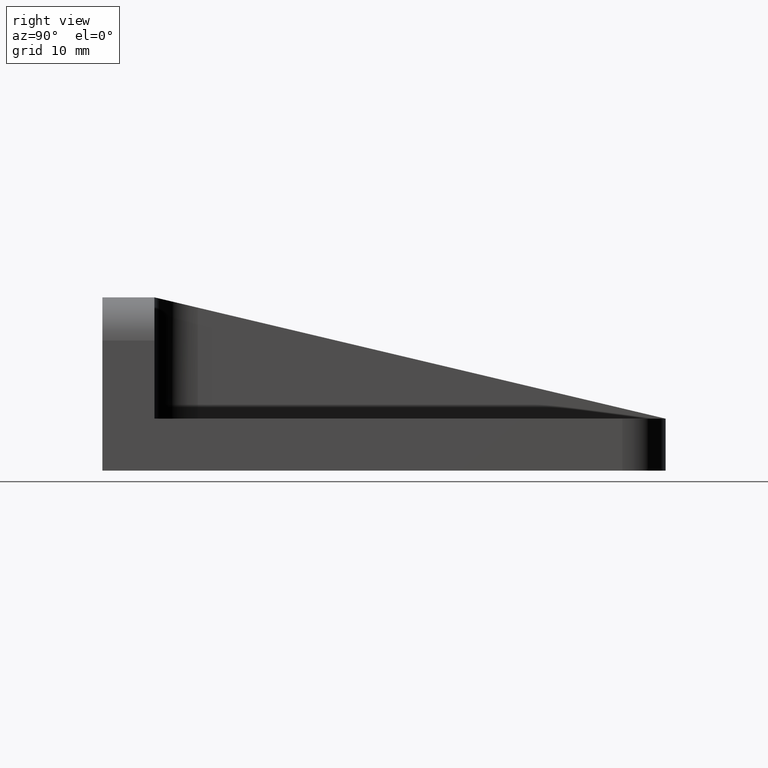
[diagram: clean part render]
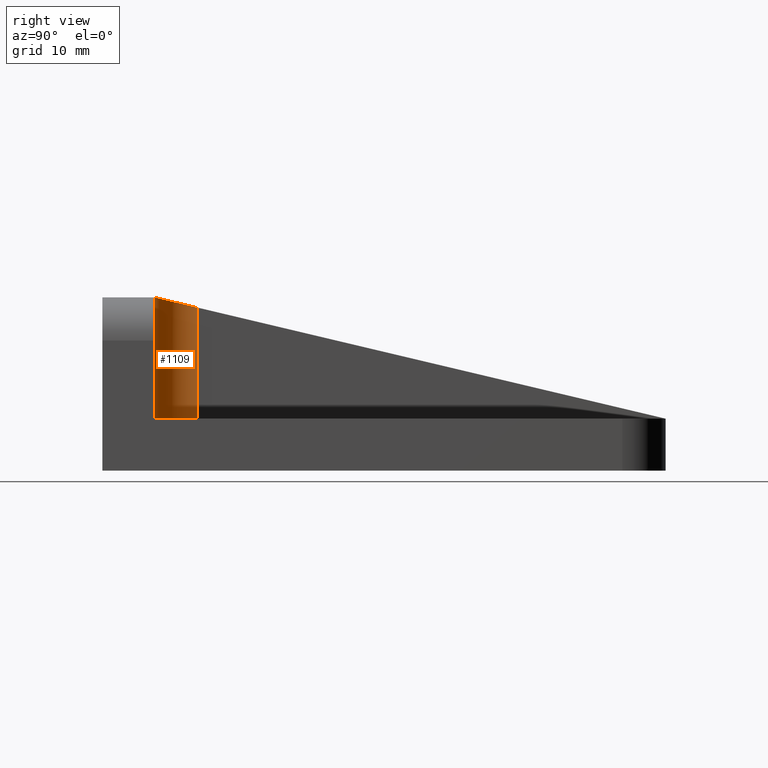
[diagram: same view with one face highlighted and labeled with its STEP entity id]
A machine part, right view. The second image highlights one B-rep face of the part: STEP entity #1109.
In plain terms, the highlighted cylindrical surface (partial cylindrical patch) has radius 5 mm, axis along (0, 0, -1).
Its self-contained STEP definition (entity closure, byte-faithful):
#76 = ORIENTED_EDGE ( 'NONE', *, *, #595, .F. ) ;
#82 = VERTEX_POINT ( 'NONE', #650 ) ;
#102 = VERTEX_POINT ( 'NONE', #922 ) ;
#190 = DIRECTION ( 'NONE',  ( 0.0000000000000000000, 0.0000000000000000000, 1.000000000000000000 ) ) ;
#204 = CYLINDRICAL_SURFACE ( 'NONE', #797, 5.000000000000000000 ) ;
#218 = ORIENTED_EDGE ( 'NONE', *, *, #478, .F. ) ;
#292 = ORIENTED_EDGE ( 'NONE', *, *, #837, .F. ) ;
#316 = CARTESIAN_POINT ( 'NONE',  ( 3.000000000000011990, 8.071067811865466624, 19.50856018023531746 ) ) ;
#323 = ORIENTED_EDGE ( 'NONE', *, *, #606, .F. ) ;
#326 = DIRECTION ( 'NONE',  ( 1.000000000000000000, 0.0000000000000000000, 0.0000000000000000000 ) ) ;
#374 = CIRCLE ( 'NONE', #435, 5.000000000000000888 ) ;
#419 = CARTESIAN_POINT ( 'NONE',  ( 3.000000000000007105, 10.99999999999998934, 18.81355932203389969 ) ) ;
#435 = AXIS2_PLACEMENT_3D ( 'NONE', #702, #1107, #326 ) ;
#478 = EDGE_CURVE ( 'NONE', #102, #82, #374, .T. ) ;
#492 = LINE ( 'NONE', #570, #1200 ) ;
#495 = DIRECTION ( 'NONE',  ( -1.000000000000000000, 0.0000000000000000000, 0.0000000000000000000 ) ) ;
#545 = CARTESIAN_POINT ( 'NONE',  ( 3.000000000000007105, 10.99999999999998934, 18.81355932203389969 ) ) ;
#563 = DIRECTION ( 'NONE',  ( -0.0000000000000000000, -0.0000000000000000000, -1.000000000000000000 ) ) ;
#570 = CARTESIAN_POINT ( 'NONE',  ( 3.000000000000007105, 10.99999999999999822, 6.000000000000005329 ) ) ;
#590 = CARTESIAN_POINT ( 'NONE',  ( 8.000000000000007105, 5.999999999999998224, 20.00000000000000355 ) ) ;
#593 = CARTESIAN_POINT ( 'NONE',  ( 8.000000000000007105, 10.99999999999999822, -62.96824596572466248 ) ) ;
#595 = EDGE_CURVE ( 'NONE', #82, #1053, #976, .T. ) ;
#606 = EDGE_CURVE ( 'NONE', #792, #102, #492, .T. ) ;
#650 = CARTESIAN_POINT ( 'NONE',  ( 8.000000000000007105, 5.999999999999998224, 6.000000000000005329 ) ) ;
#695 = EDGE_LOOP ( 'NONE', ( #218, #323, #292, #76 ) ) ;
#697 = FACE_OUTER_BOUND ( 'NONE', #695, .T. ) ;
#702 = CARTESIAN_POINT ( 'NONE',  ( 8.000000000000007105, 10.99999999999999822, 6.000000000000005329 ) ) ;
#792 = VERTEX_POINT ( 'NONE', #545 ) ;
#797 = AXIS2_PLACEMENT_3D ( 'NONE', #593, #1171, #495 ) ;
#807 = CARTESIAN_POINT ( 'NONE',  ( 8.000000000000007105, 5.999999999999997335, 20.00000000000000000 ) ) ;
#837 = EDGE_CURVE ( 'NONE', #1053, #792, #878, .T. ) ;
#847 = VECTOR ( 'NONE', #190, 1000.000000000000000 ) ;
#878 =( BOUNDED_CURVE ( )  B_SPLINE_CURVE ( 3, ( #807, #1187, #316, #419 ),
 .UNSPECIFIED., .F., .T. ) 
 B_SPLINE_CURVE_WITH_KNOTS ( ( 4, 4 ),
 ( 3.141592653589793116, 4.712388980384687898 ),
 .UNSPECIFIED. ) 
 CURVE ( )  GEOMETRIC_REPRESENTATION_ITEM ( )  RATIONAL_B_SPLINE_CURVE ( ( 1.000000000000000000, 0.8047378541243654926, 0.8047378541243654926, 1.000000000000000000 ) ) 
 REPRESENTATION_ITEM ( '' )  );
#922 = CARTESIAN_POINT ( 'NONE',  ( 3.000000000000007105, 10.99999999999999822, 6.000000000000005329 ) ) ;
#976 = LINE ( 'NONE', #590, #847 ) ;
#1053 = VERTEX_POINT ( 'NONE', #1080 ) ;
#1080 = CARTESIAN_POINT ( 'NONE',  ( 8.000000000000007105, 5.999999999999997335, 20.00000000000000000 ) ) ;
#1107 = DIRECTION ( 'NONE',  ( 0.0000000000000000000, 0.0000000000000000000, 1.000000000000000000 ) ) ;
#1109 = ADVANCED_FACE ( 'NONE', ( #697 ), #204, .F. ) ;
#1171 = DIRECTION ( 'NONE',  ( 0.0000000000000000000, 0.0000000000000000000, -1.000000000000000000 ) ) ;
#1187 = CARTESIAN_POINT ( 'NONE',  ( 5.071067811865485275, 5.999999999999998224, 20.00000000000000711 ) ) ;
#1200 = VECTOR ( 'NONE', #563, 1000.000000000000000 ) ;